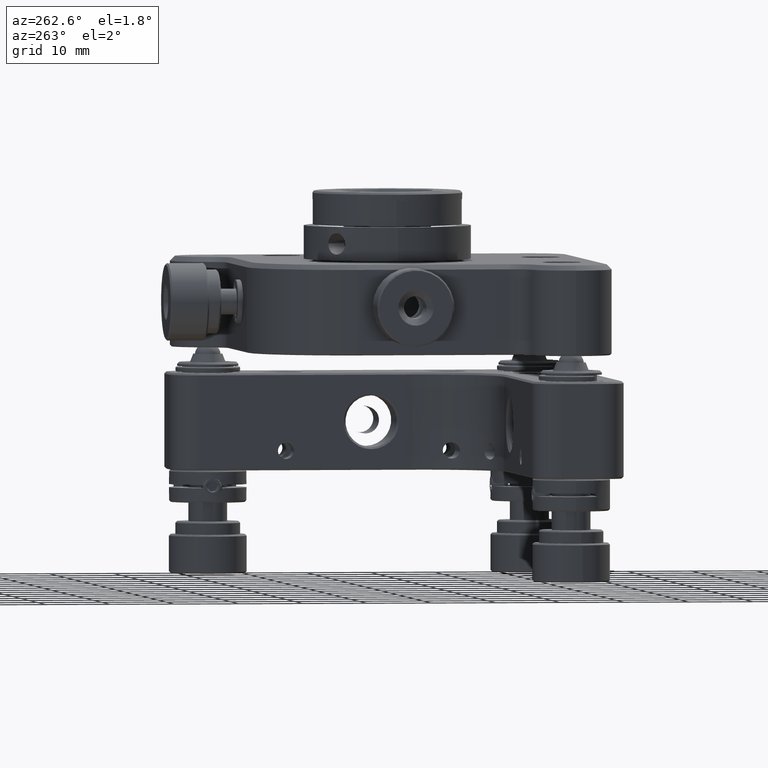
[diagram: clean part render]
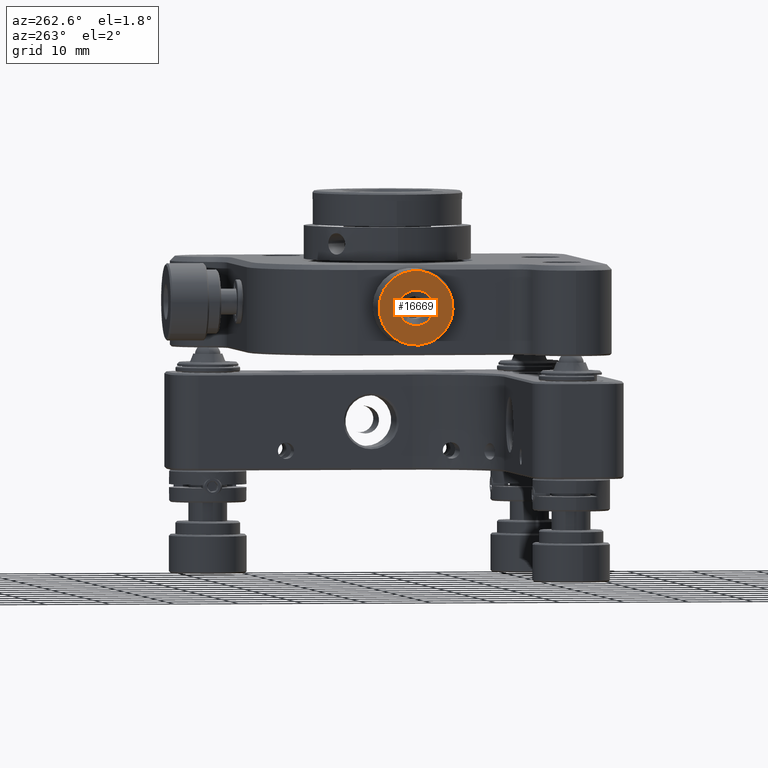
[diagram: same view with one face highlighted and labeled with its STEP entity id]
A machine part, auxiliary view. The second image highlights one B-rep face of the part: STEP entity #16669.
In plain terms, the highlighted planar face has unit normal (1, -0, 0).
Its self-contained STEP definition (entity closure, byte-faithful):
#28 = CARTESIAN_POINT ( 'NONE',  ( -31.91062034355962496, -5.991697603034073616, 6.757226308143215121 ) ) ;
#1175 = VERTEX_POINT ( 'NONE', #3141 ) ;
#1689 = DIRECTION ( 'NONE',  ( 1.000000000000000000, -1.205976048667838999E-15, -3.019538841893720523E-16 ) ) ;
#1801 = CARTESIAN_POINT ( 'NONE',  ( -31.91062034355962496, -2.539999999999940528, 2.158499999999997421 ) ) ;
#2615 = FACE_OUTER_BOUND ( 'NONE', #18770, .T. ) ;
#3048 = CARTESIAN_POINT ( 'NONE',  ( -31.91062034355962496, -2.539999999999940528, 2.158499999999997421 ) ) ;
#3141 = CARTESIAN_POINT ( 'NONE',  ( -31.91062034355962496, -0.8891881028966672762, -0.04089084302501960755 ) ) ;
#3316 = EDGE_CURVE ( 'NONE', #8162, #7393, #21122, .T. ) ;
#3591 = DIRECTION ( 'NONE',  ( -2.523234146875360435E-15, -0.6002952353102810612, 0.7997784883727332428 ) ) ;
#4458 = DIRECTION ( 'NONE',  ( -1.000000000000000000, 1.205976048667838999E-15, 3.019538841893720523E-16 ) ) ;
#4481 = DIRECTION ( 'NONE',  ( -1.000000000000000000, 1.205976048667838999E-15, 3.019538841893720523E-16 ) ) ;
#4622 = EDGE_CURVE ( 'NONE', #1175, #14635, #6595, .T. ) ;
#4898 = AXIS2_PLACEMENT_3D ( 'NONE', #19583, #4458, #17944 ) ;
#5556 = ORIENTED_EDGE ( 'NONE', *, *, #3316, .T. ) ;
#5830 = DIRECTION ( 'NONE',  ( -1.370623874558498086E-15, -0.6002952353102809502, 0.7997784883727332428 ) ) ;
#6460 = AXIS2_PLACEMENT_3D ( 'NONE', #20381, #18733, #3591 ) ;
#6595 = CIRCLE ( 'NONE', #20322, 2.749999999999995115 ) ;
#7393 = VERTEX_POINT ( 'NONE', #28 ) ;
#7729 = AXIS2_PLACEMENT_3D ( 'NONE', #16107, #12569, #5830 ) ;
#7739 = CARTESIAN_POINT ( 'NONE',  ( -31.91062034355962496, 0.9116976030341563675, -2.440226308143220280 ) ) ;
#8162 = VERTEX_POINT ( 'NONE', #7739 ) ;
#8673 = EDGE_LOOP ( 'NONE', ( #18967, #14206 ) ) ;
#8828 = AXIS2_PLACEMENT_3D ( 'NONE', #3048, #4481, #9790 ) ;
#9790 = DIRECTION ( 'NONE',  ( -1.206764157201258524E-15, -0.6002952353102809502, 0.7997784883727332428 ) ) ;
#10199 = DIRECTION ( 'NONE',  ( -2.523234146875360435E-15, -0.6002952353102810612, 0.7997784883727332428 ) ) ;
#10461 = EDGE_CURVE ( 'NONE', #7393, #8162, #12001, .T. ) ;
#10827 = ORIENTED_EDGE ( 'NONE', *, *, #10461, .T. ) ;
#11523 = CARTESIAN_POINT ( 'NONE',  ( -31.91062034355962496, -4.190811897103206896, 4.357890843025004735 ) ) ;
#11711 = EDGE_CURVE ( 'NONE', #14635, #1175, #15988, .T. ) ;
#12001 = CIRCLE ( 'NONE', #8828, 5.749999999999992895 ) ;
#12569 = DIRECTION ( 'NONE',  ( 1.000000000000000000, -1.739145322119240037E-15, 4.083921097236781280E-16 ) ) ;
#12900 = PLANE ( 'NONE',  #7729 ) ;
#14206 = ORIENTED_EDGE ( 'NONE', *, *, #11711, .T. ) ;
#14635 = VERTEX_POINT ( 'NONE', #11523 ) ;
#15988 = CIRCLE ( 'NONE', #6460, 2.749999999999995115 ) ;
#16107 = CARTESIAN_POINT ( 'NONE',  ( -31.91062034355962496, -2.539999999999940528, 2.158499999999997421 ) ) ;
#16669 = ADVANCED_FACE ( 'NONE', ( #17650, #2615 ), #12900, .F. ) ;
#17650 = FACE_BOUND ( 'NONE', #8673, .T. ) ;
#17944 = DIRECTION ( 'NONE',  ( -1.206764157201258524E-15, -0.6002952353102796179, 0.7997784883727343530 ) ) ;
#18733 = DIRECTION ( 'NONE',  ( 1.000000000000000000, -1.205976048667838999E-15, -3.019538841893720523E-16 ) ) ;
#18770 = EDGE_LOOP ( 'NONE', ( #10827, #5556 ) ) ;
#18967 = ORIENTED_EDGE ( 'NONE', *, *, #4622, .T. ) ;
#19583 = CARTESIAN_POINT ( 'NONE',  ( -31.91062034355962496, -2.539999999999940528, 2.158499999999997421 ) ) ;
#20322 = AXIS2_PLACEMENT_3D ( 'NONE', #1801, #1689, #10199 ) ;
#20381 = CARTESIAN_POINT ( 'NONE',  ( -31.91062034355962496, -2.539999999999940528, 2.158499999999997421 ) ) ;
#21122 = CIRCLE ( 'NONE', #4898, 5.749999999999992895 ) ;